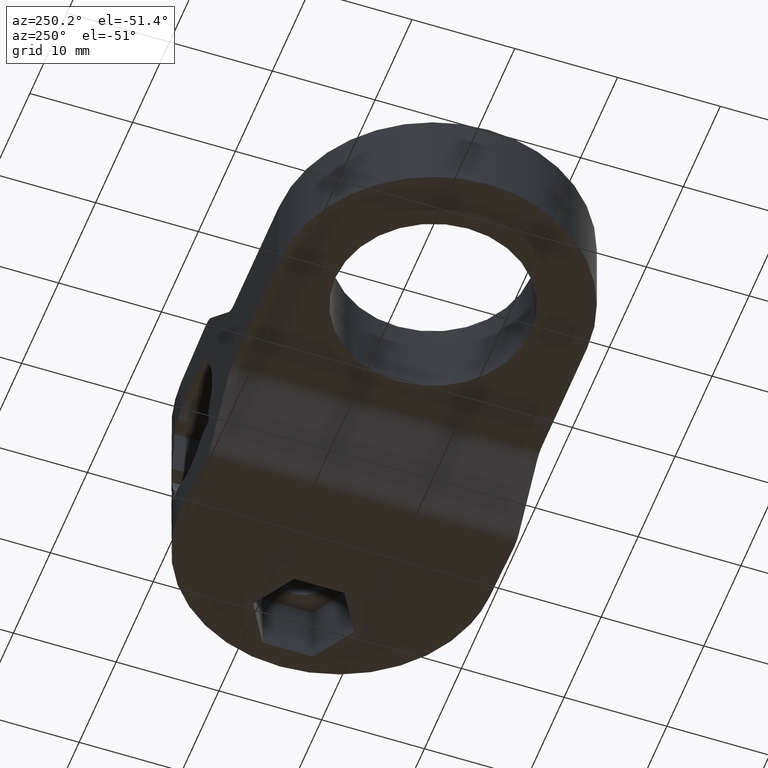
[diagram: clean part render]
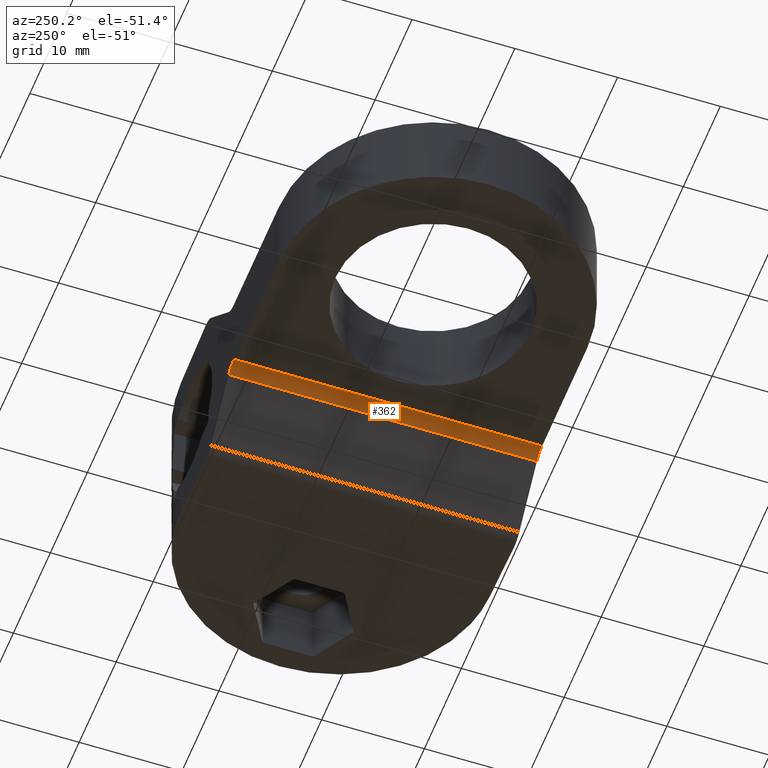
[diagram: same view with one face highlighted and labeled with its STEP entity id]
A machine part, auxiliary view. The second image highlights one B-rep face of the part: STEP entity #362.
In plain terms, the highlighted cylindrical surface (edge-blend (fillet) strip) has radius 2 mm, axis along (0, -1, 0).
Its self-contained STEP definition (entity closure, byte-faithful):
#321=CARTESIAN_POINT('',(-11.828427124746213,0.0,-6.000000000000007));
#322=DIRECTION('',(0.0,-1.0,0.0));
#323=DIRECTION('',(0.707106781186550,0.0,0.707106781186545));
#324=AXIS2_PLACEMENT_3D('',#321,#322,#323);
#325=CYLINDRICAL_SURFACE('',#324,2.000000000000008);
#326=CARTESIAN_POINT('',(-10.414213562373106,0.0,-4.585786437626911));
#327=VERTEX_POINT('',#326);
#328=CARTESIAN_POINT('',(-10.414213562373106,-29.999999999999993,-4.585786437626911));
#329=VERTEX_POINT('',#328);
#330=CARTESIAN_POINT('',(-10.414213562373106,0.0,-4.585786437626911));
#331=DIRECTION('',(0.0,-1.0,0.0));
#332=VECTOR('',#331,29.999999999999993);
#333=LINE('',#330,#332);
#334=EDGE_CURVE('',#327,#329,#333,.T.);
#335=ORIENTED_EDGE('',*,*,#334,.T.);
#336=CARTESIAN_POINT('',(-11.828427124746213,-29.999999999999993,-4.000000000000007));
#337=VERTEX_POINT('',#336);
#338=CARTESIAN_POINT('',(-11.828427124746213,-30.000000000000014,-6.000000000000005));
#339=DIRECTION('',(0.0,-1.000000000000000,0.0));
#340=DIRECTION('',(0.707106781186550,0.0,0.707106781186545));
#341=AXIS2_PLACEMENT_3D('',#338,#339,#340);
#342=CIRCLE('',#341,2.000000000000008);
#343=EDGE_CURVE('',#329,#337,#342,.T.);
#344=ORIENTED_EDGE('',*,*,#343,.T.);
#345=CARTESIAN_POINT('',(-11.828427124746213,0.0,-4.000000000000007));
#346=VERTEX_POINT('',#345);
#347=CARTESIAN_POINT('',(-11.828427124746213,0.0,-4.000000000000007));
#348=DIRECTION('',(0.0,-1.0,0.0));
#349=VECTOR('',#348,29.999999999999993);
#350=LINE('',#347,#349);
#351=EDGE_CURVE('',#346,#337,#350,.T.);
#352=ORIENTED_EDGE('',*,*,#351,.F.);
#353=CARTESIAN_POINT('',(-11.828427124746213,0.0,-6.000000000000005));
#354=DIRECTION('',(0.0,-1.000000000000000,0.0));
#355=DIRECTION('',(0.707106781186550,0.0,0.707106781186545));
#356=AXIS2_PLACEMENT_3D('',#353,#354,#355);
#357=CIRCLE('',#356,2.000000000000008);
#358=EDGE_CURVE('',#327,#346,#357,.T.);
#359=ORIENTED_EDGE('',*,*,#358,.F.);
#360=EDGE_LOOP('',(#335,#344,#352,#359));
#361=FACE_OUTER_BOUND('',#360,.T.);
#362=ADVANCED_FACE('',(#361),#325,.F.);